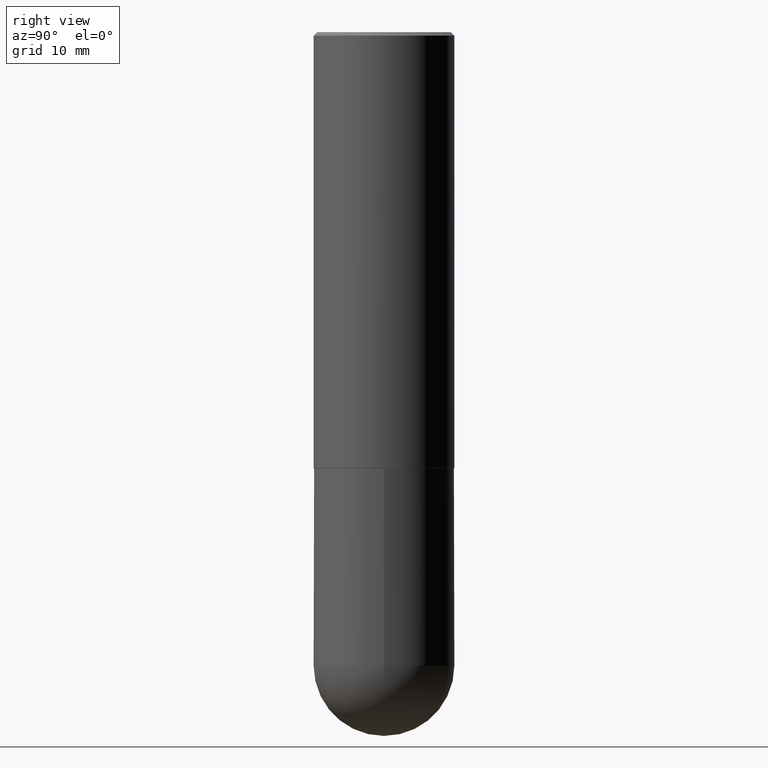
[diagram: clean part render]
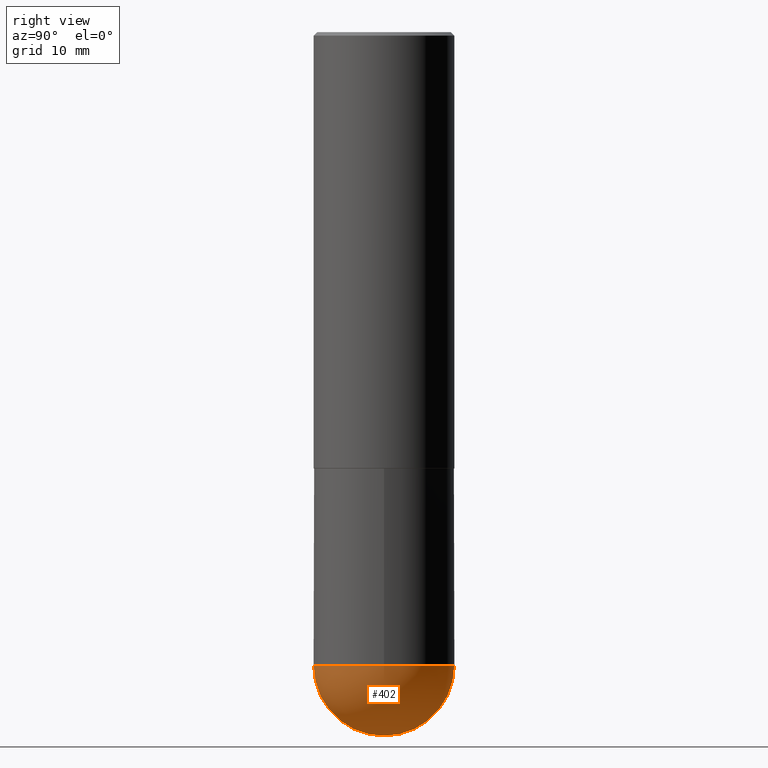
[diagram: same view with one face highlighted and labeled with its STEP entity id]
A machine part, right view. The second image highlights one B-rep face of the part: STEP entity #402.
In plain terms, the highlighted spherical surface has radius 10 mm.
Its self-contained STEP definition (entity closure, byte-faithful):
#4 = FACE_OUTER_BOUND ( 'NONE', #405, .T. ) ;
#7 = CIRCLE ( 'NONE', #30, 0.3937000000000001054 ) ;
#24 = CARTESIAN_POINT ( 'NONE',  ( 8.333909843041907822E-29, -1.284554819606296579E-14, -3.543299999999999894 ) ) ;
#30 = AXIS2_PLACEMENT_3D ( 'NONE', #294, #260, #140 ) ;
#37 = AXIS2_PLACEMENT_3D ( 'NONE', #24, #212, #283 ) ;
#45 = CARTESIAN_POINT ( 'NONE',  ( 0.3937000000000001054, -1.319605372015766376E-14, -3.543299999999999450 ) ) ;
#46 = VERTEX_POINT ( 'NONE', #45 ) ;
#50 = AXIS2_PLACEMENT_3D ( 'NONE', #108, #399, #398 ) ;
#56 = CARTESIAN_POINT ( 'NONE',  ( 2.749192406205169202E-15, 0.3936999999999876709, -3.543300000000000782 ) ) ;
#72 = DIRECTION ( 'NONE',  ( 1.000000000000000000, -6.982962677686266711E-15, 0.000000000000000000 ) ) ;
#81 = ORIENTED_EDGE ( 'NONE', *, *, #332, .F. ) ;
#92 = DIRECTION ( 'NONE',  ( 6.982962677686265133E-15, 1.000000000000000000, 0.000000000000000000 ) ) ;
#104 = DIRECTION ( 'NONE',  ( -2.445468806185136597E-29, 3.491481338843145583E-15, 1.000000000000000000 ) ) ;
#107 = CIRCLE ( 'NONE', #228, 0.3937000000000001054 ) ;
#108 = CARTESIAN_POINT ( 'NONE',  ( 8.333909843041907822E-29, -1.284554819606296579E-14, -3.543299999999999894 ) ) ;
#123 = DIRECTION ( 'NONE',  ( 1.000000000000000000, -6.982962677686265922E-15, 4.883557194083112340E-29 ) ) ;
#132 = VERTEX_POINT ( 'NONE', #254 ) ;
#140 = DIRECTION ( 'NONE',  ( 1.000000000000000000, -6.982962677686266711E-15, 0.000000000000000000 ) ) ;
#141 = SPHERICAL_SURFACE ( 'NONE', #50, 0.3937000000000003830 ) ;
#147 = CIRCLE ( 'NONE', #288, 0.3937000000000003830 ) ;
#169 = CIRCLE ( 'NONE', #37, 0.3937000000000003830 ) ;
#193 = EDGE_CURVE ( 'NONE', #213, #132, #169, .T. ) ;
#212 = DIRECTION ( 'NONE',  ( -1.000000000000000000, 7.105427357601001070E-15, -4.926315508542082329E-29 ) ) ;
#213 = VERTEX_POINT ( 'NONE', #348 ) ;
#218 = CARTESIAN_POINT ( 'NONE',  ( 8.333909843041907822E-29, -1.284554819606296579E-14, -3.543299999999999894 ) ) ;
#221 = VERTEX_POINT ( 'NONE', #56 ) ;
#226 = CARTESIAN_POINT ( 'NONE',  ( 8.665029620955792948E-29, -1.237136582792291707E-14, -3.543299999999999450 ) ) ;
#228 = AXIS2_PLACEMENT_3D ( 'NONE', #226, #104, #72 ) ;
#230 = EDGE_CURVE ( 'NONE', #213, #221, #147, .T. ) ;
#254 = CARTESIAN_POINT ( 'NONE',  ( -2.797406750687430773E-15, -0.3937000000000128175, -3.543299999999997674 ) ) ;
#260 = DIRECTION ( 'NONE',  ( -2.445468806185136597E-29, 3.491481338843145583E-15, 1.000000000000000000 ) ) ;
#283 = DIRECTION ( 'NONE',  ( -7.105427357600999492E-15, -1.000000000000000000, 0.000000000000000000 ) ) ;
#286 = ORIENTED_EDGE ( 'NONE', *, *, #193, .F. ) ;
#288 = AXIS2_PLACEMENT_3D ( 'NONE', #218, #123, #92 ) ;
#294 = CARTESIAN_POINT ( 'NONE',  ( 8.665029620955792948E-29, -1.237136582792291707E-14, -3.543299999999999450 ) ) ;
#328 = EDGE_CURVE ( 'NONE', #46, #221, #7, .T. ) ;
#332 = EDGE_CURVE ( 'NONE', #132, #46, #107, .T. ) ;
#346 = ORIENTED_EDGE ( 'NONE', *, *, #230, .T. ) ;
#348 = CARTESIAN_POINT ( 'NONE',  ( 9.313524860439493426E-29, -1.419603722692429674E-14, -3.937000000000000277 ) ) ;
#398 = DIRECTION ( 'NONE',  ( 6.982962677686265922E-15, 1.000000000000000000, -4.163344669033671690E-15 ) ) ;
#399 = DIRECTION ( 'NONE',  ( -1.000000000000000000, 6.982962677686265922E-15, -4.883557194083112340E-29 ) ) ;
#402 = ADVANCED_FACE ( 'NONE', ( #4 ), #141, .T. ) ;
#403 = ORIENTED_EDGE ( 'NONE', *, *, #328, .F. ) ;
#405 = EDGE_LOOP ( 'NONE', ( #286, #346, #403, #81 ) ) ;